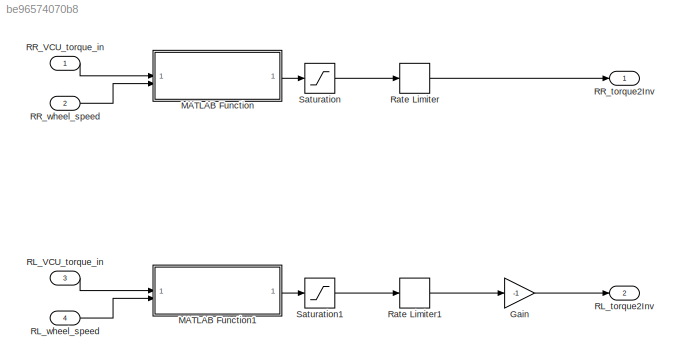
MODEL slx_be96574070b8
KIND model
CONFIG AbsTol = auto
CONFIG EnableMultiTasking = off
CONFIG FixedStep = auto
CONFIG MaxStep = auto
CONFIG MinStep = auto
CONFIG RelTol = 1e-3
CONFIG SampleTimeConstraint = Unconstrained
CONFIG SolverName = VariableStepAuto
CONFIG StartTime = 0.0
CONFIG StopTime = 10.0
BLOCK [Gain] Gain
  Gain = -1
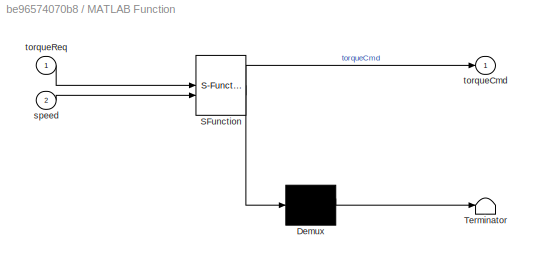
BLOCK [SubSystem] MATLAB Function
  ErrorFcn = Stateflow.Translate.translate
  PermitHierarchicalResolution = ExplicitOnly
  SFBlockType = MATLAB Function
  TreatAsAtomicUnit = on
BLOCK [Demux] MATLAB Function/ Demux 
  Outputs = 1
BLOCK [S-Function] MATLAB Function/ SFunction 
  EnableBusSupport = off
  FunctionName = sf_sfun
  PortCounts = [2 2]
  SFcnIsStateOwnerBlock = off
  SFunctionDeploymentMode = off
  Tag = Stateflow S-Function 2
BLOCK [Terminator] MATLAB Function/ Terminator 
BLOCK [Inport] MATLAB Function/speed
  Port = 2
BLOCK [Outport] MATLAB Function/torqueCmd
BLOCK [Inport] MATLAB Function/torqueReq
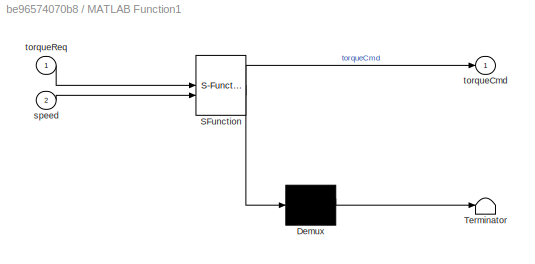
BLOCK [SubSystem] MATLAB Function1
  ErrorFcn = Stateflow.Translate.translate
  PermitHierarchicalResolution = ExplicitOnly
  SFBlockType = MATLAB Function
  TreatAsAtomicUnit = on
BLOCK [Demux] MATLAB Function1/ Demux 
  Outputs = 1
BLOCK [S-Function] MATLAB Function1/ SFunction 
  EnableBusSupport = off
  FunctionName = sf_sfun
  PortCounts = [2 2]
  SFcnIsStateOwnerBlock = off
  SFunctionDeploymentMode = off
  Tag = Stateflow S-Function 1
BLOCK [Terminator] MATLAB Function1/ Terminator 
BLOCK [Inport] MATLAB Function1/speed
  Port = 2
BLOCK [Outport] MATLAB Function1/torqueCmd
BLOCK [Inport] MATLAB Function1/torqueReq
BLOCK [Inport] RL_VCU_torque_in
  Port = 3
BLOCK [Outport] RL_torque2Inv
  Port = 2
BLOCK [Inport] RL_wheel_speed
  Port = 4
BLOCK [Inport] RR_VCU_torque_in
BLOCK [Outport] RR_torque2Inv
BLOCK [Inport] RR_wheel_speed
  Port = 2
BLOCK [RateLimiter] Rate Limiter
  FallingSlewLimit = -4
  RisingSlewLimit = 4
BLOCK [RateLimiter] Rate Limiter1
  FallingSlewLimit = -4
  RisingSlewLimit = 4
BLOCK [Saturate] Saturation
  LowerLimit = 0
  UpperLimit = 10
BLOCK [Saturate] Saturation1
  LowerLimit = 0
  UpperLimit = 10
LINE Gain:1 -> RL_torque2Inv:1
LINE MATLAB Function1:1 -> Saturation1:1
LINE MATLAB Function:1 -> Saturation:1
LINE RL_VCU_torque_in:1 -> MATLAB Function1:1
LINE RL_wheel_speed:1 -> MATLAB Function1:2
LINE RR_VCU_torque_in:1 -> MATLAB Function:1
LINE RR_wheel_speed:1 -> MATLAB Function:2
LINE Rate Limiter1:1 -> Gain:1
LINE Rate Limiter:1 -> RR_torque2Inv:1
LINE Saturation1:1 -> Rate Limiter1:1
LINE Saturation:1 -> Rate Limiter:1
CHART MATLAB Function states=1 transitions=1
  STATE_LABEL 'eML_blk_kernel()'
  STATE_LABEL 'SCRIPT:\nfunction torqueCmd  = derate(torqueReq, speed)\n\nif speed < 230\n    torqueCmd = torqueReq;\nelse\n    torqueCmd = torqueReq*(1-(speed-230)/370);\nend\n'
CHART MATLAB Function1 states=1 transitions=1
  STATE_LABEL 'eML_blk_kernel()'
  STATE_LABEL 'SCRIPT:\nfunction torqueCmd  = derate(torqueReq, speed)\n\nif speed < 230\n    torqueCmd = torqueReq;\nelse\n    torqueCmd = torqueReq*(1-(speed-230)/370);\nend\n'
CHART  states=0 transitions=0
CHART  states=0 transitions=0
